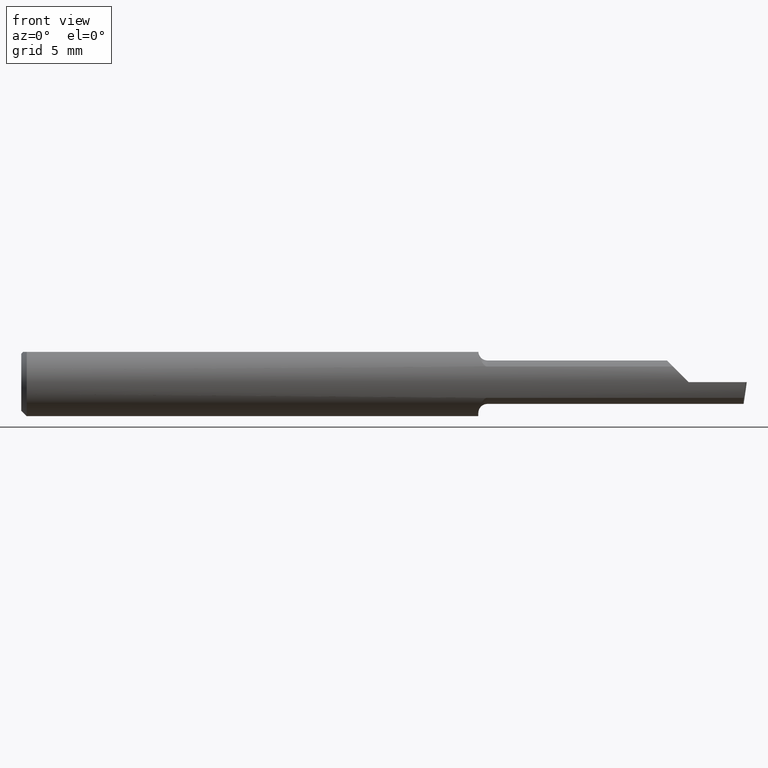
[diagram: clean part render]
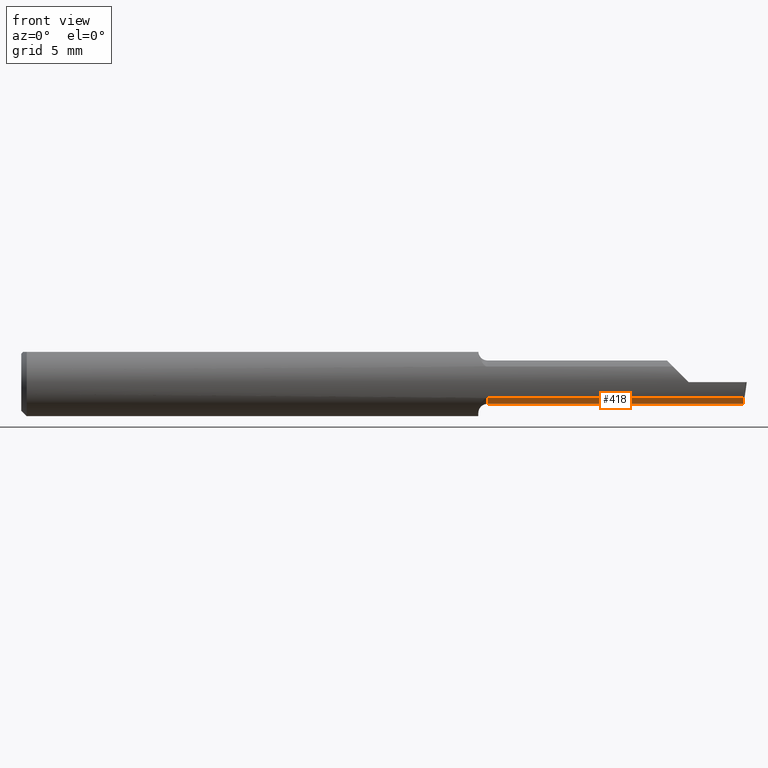
[diagram: same view with one face highlighted and labeled with its STEP entity id]
A machine part, front view. The second image highlights one B-rep face of the part: STEP entity #418.
In plain terms, the highlighted cylindrical surface (edge-blend (fillet) strip) has radius 1.5215 mm, axis along (-1, -0, -0).
Its self-contained STEP definition (entity closure, byte-faithful):
#24 = CARTESIAN_POINT ( 'NONE',  ( 1.284999999999999920, -0.04149999999999999523, -0.05989999999999994634 ) ) ;
#37 = VERTEX_POINT ( 'NONE', #24 ) ;
#60 = EDGE_LOOP ( 'NONE', ( #220, #266, #413, #528, #141 ) ) ;
#68 = CIRCLE ( 'NONE', #633, 0.05989999999999993940 ) ;
#71 = VECTOR ( 'NONE', #505, 39.37007874015748143 ) ;
#81 = CARTESIAN_POINT ( 'NONE',  ( 1.284999999999999920, -0.08307469879518099287, -0.04312255117789263320 ) ) ;
#85 = VERTEX_POINT ( 'NONE', #493 ) ;
#87 = LINE ( 'NONE', #435, #429 ) ;
#134 = CARTESIAN_POINT ( 'NONE',  ( 1.854999999999999982, -0.04150000000000000216, -0.05990000000000000185 ) ) ;
#141 = ORIENTED_EDGE ( 'NONE', *, *, #566, .F. ) ;
#143 = EDGE_CURVE ( 'NONE', #271, #151, #341, .T. ) ;
#148 = EDGE_CURVE ( 'NONE', #271, #85, #434, .T. ) ;
#151 = VERTEX_POINT ( 'NONE', #81 ) ;
#159 = CARTESIAN_POINT ( 'NONE',  ( 0.0000000000000000000, -0.04150000000000000216, 0.0000000000000000000 ) ) ;
#177 = CYLINDRICAL_SURFACE ( 'NONE', #214, 0.05989999999999997410 ) ;
#199 = CARTESIAN_POINT ( 'NONE',  ( 1.569999999999999840, -0.08307469879518077083, -0.04312255117789288994 ) ) ;
#214 = AXIS2_PLACEMENT_3D ( 'NONE', #159, #348, #400 ) ;
#218 = VERTEX_POINT ( 'NONE', #134 ) ;
#220 = ORIENTED_EDGE ( 'NONE', *, *, #476, .F. ) ;
#229 = CARTESIAN_POINT ( 'NONE',  ( 1.284999999999999920, -0.04150000000000000216, 0.0000000000000000000 ) ) ;
#232 = CARTESIAN_POINT ( 'NONE',  ( 1.991365359011875169, -0.08307469879518077083, -0.04312255117789288994 ) ) ;
#253 = DIRECTION ( 'NONE',  ( -1.000000000000000000, -0.0000000000000000000, -0.0000000000000000000 ) ) ;
#261 = LINE ( 'NONE', #297, #603 ) ;
#266 = ORIENTED_EDGE ( 'NONE', *, *, #574, .F. ) ;
#271 = VERTEX_POINT ( 'NONE', #438 ) ;
#297 = CARTESIAN_POINT ( 'NONE',  ( 0.0000000000000000000, -0.04149999999999999523, -0.05989999999999997410 ) ) ;
#341 = LINE ( 'NONE', #199, #71 ) ;
#348 = DIRECTION ( 'NONE',  ( -1.000000000000000000, -0.0000000000000000000, -0.0000000000000000000 ) ) ;
#385 = CARTESIAN_POINT ( 'NONE',  ( 1.990322576363892759, -0.07176861043311236199, -0.05402281578110740973 ) ) ;
#400 = DIRECTION ( 'NONE',  ( 0.0000000000000000000, 0.0000000000000000000, 1.000000000000000000 ) ) ;
#413 = ORIENTED_EDGE ( 'NONE', *, *, #148, .F. ) ;
#418 = ADVANCED_FACE ( 'NONE', ( #475 ), #177, .T. ) ;
#429 = VECTOR ( 'NONE', #481, 39.37007874015748143 ) ;
#434 =( BOUNDED_CURVE ( )  B_SPLINE_CURVE ( 3, ( #232, #385, #643, #439 ),
 .UNSPECIFIED., .F., .T. ) 
 B_SPLINE_CURVE_WITH_KNOTS ( ( 4, 4 ),
 ( 5.726109673675772171, 6.493234751459700860 ),
 .UNSPECIFIED. ) 
 CURVE ( )  GEOMETRIC_REPRESENTATION_ITEM ( )  RATIONAL_B_SPLINE_CURVE ( ( 1.000000000000000000, 0.9515582177473689285, 0.9515582177473689285, 1.000000000000000000 ) ) 
 REPRESENTATION_ITEM ( '' )  );
#435 = CARTESIAN_POINT ( 'NONE',  ( 2.000000000000000000, -0.04150000000000000216, -0.05990000000000000185 ) ) ;
#438 = CARTESIAN_POINT ( 'NONE',  ( 1.991365359011875169, -0.08307469879518077083, -0.04312255117789288994 ) ) ;
#439 = CARTESIAN_POINT ( 'NONE',  ( 1.990393312970557327, -0.04150000000000000216, -0.05990000000000000185 ) ) ;
#475 = FACE_OUTER_BOUND ( 'NONE', #60, .T. ) ;
#476 = EDGE_CURVE ( 'NONE', #218, #37, #261, .T. ) ;
#481 = DIRECTION ( 'NONE',  ( -1.000000000000000000, 5.691349986800549142E-18, -0.0000000000000000000 ) ) ;
#493 = CARTESIAN_POINT ( 'NONE',  ( 1.990393312970557327, -0.04150000000000000216, -0.05990000000000000185 ) ) ;
#505 = DIRECTION ( 'NONE',  ( -1.000000000000000000, -0.0000000000000000000, -0.0000000000000000000 ) ) ;
#528 = ORIENTED_EDGE ( 'NONE', *, *, #143, .T. ) ;
#530 = DIRECTION ( 'NONE',  ( 0.0000000000000000000, 0.0000000000000000000, 1.000000000000000000 ) ) ;
#566 = EDGE_CURVE ( 'NONE', #37, #151, #68, .T. ) ;
#574 = EDGE_CURVE ( 'NONE', #85, #218, #87, .T. ) ;
#587 = DIRECTION ( 'NONE',  ( -1.000000000000000000, -0.0000000000000000000, -0.0000000000000000000 ) ) ;
#603 = VECTOR ( 'NONE', #253, 39.37007874015748143 ) ;
#633 = AXIS2_PLACEMENT_3D ( 'NONE', #229, #587, #530 ) ;
#643 = CARTESIAN_POINT ( 'NONE',  ( 1.989982066092358393, -0.05720488466914004644, -0.05989999999999997410 ) ) ;